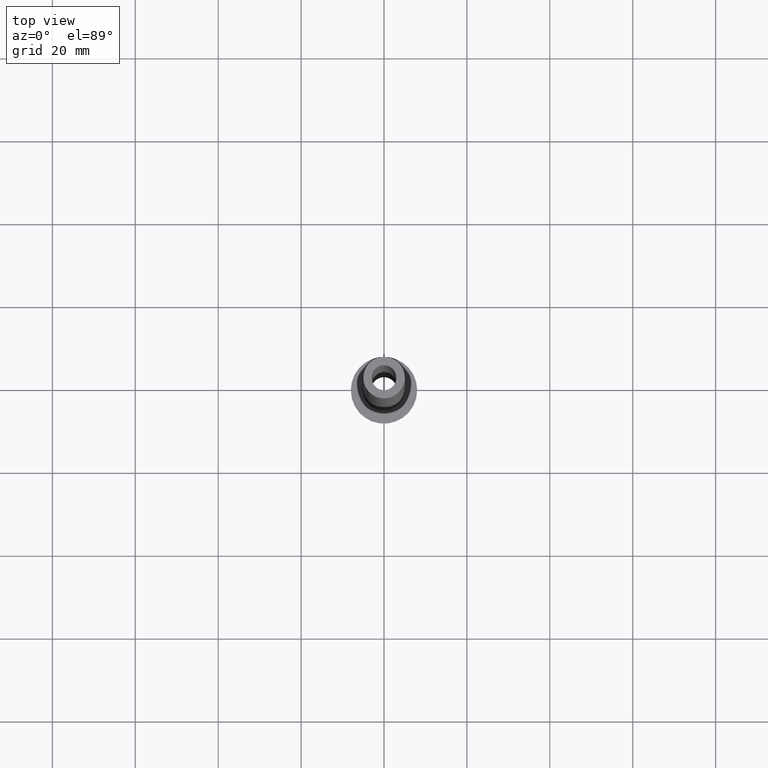
[diagram: clean part render]
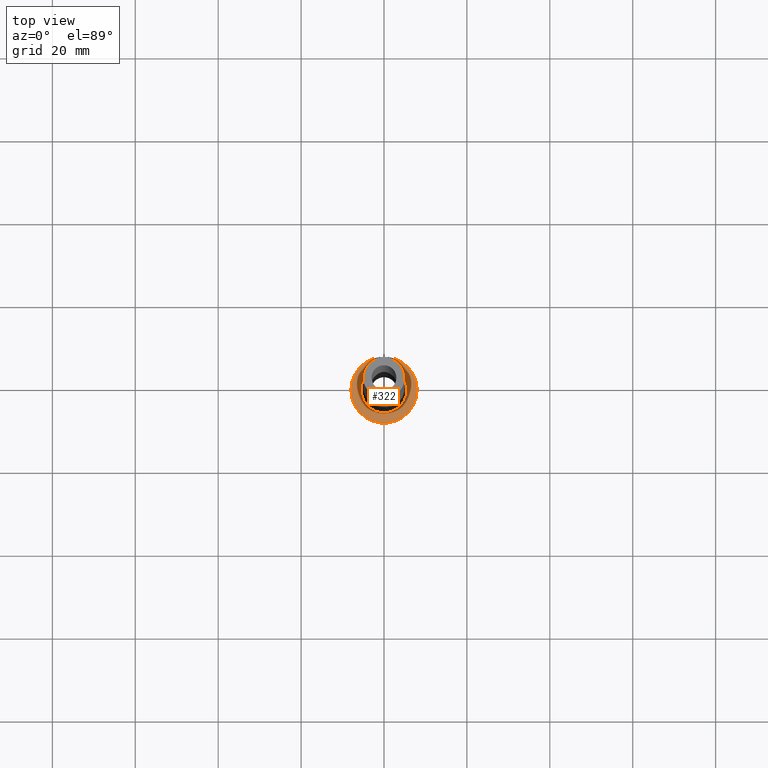
[diagram: same view with one face highlighted and labeled with its STEP entity id]
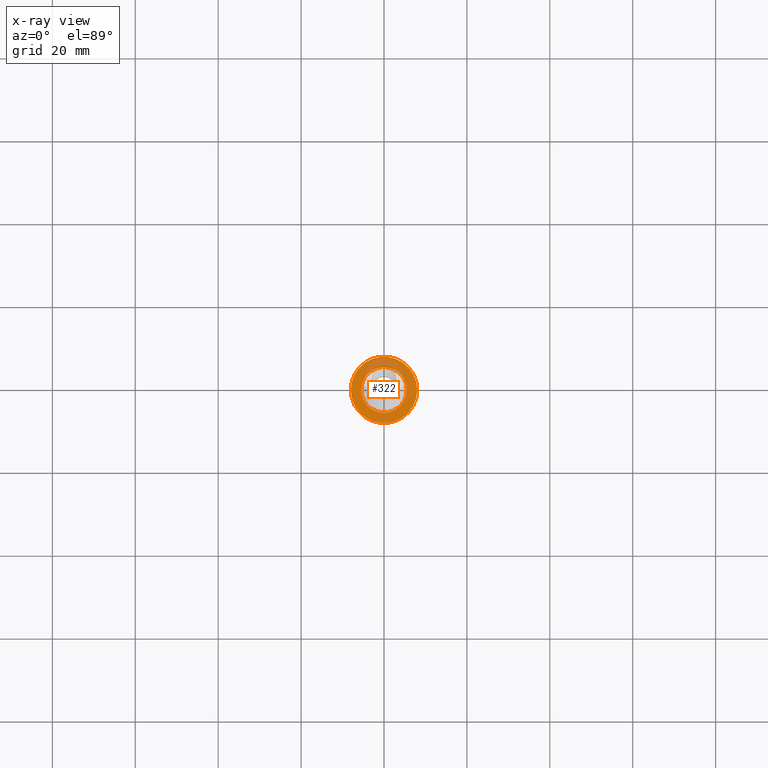
[diagram: x-ray of the same camera — body ghosted, the highlighted face saturated]
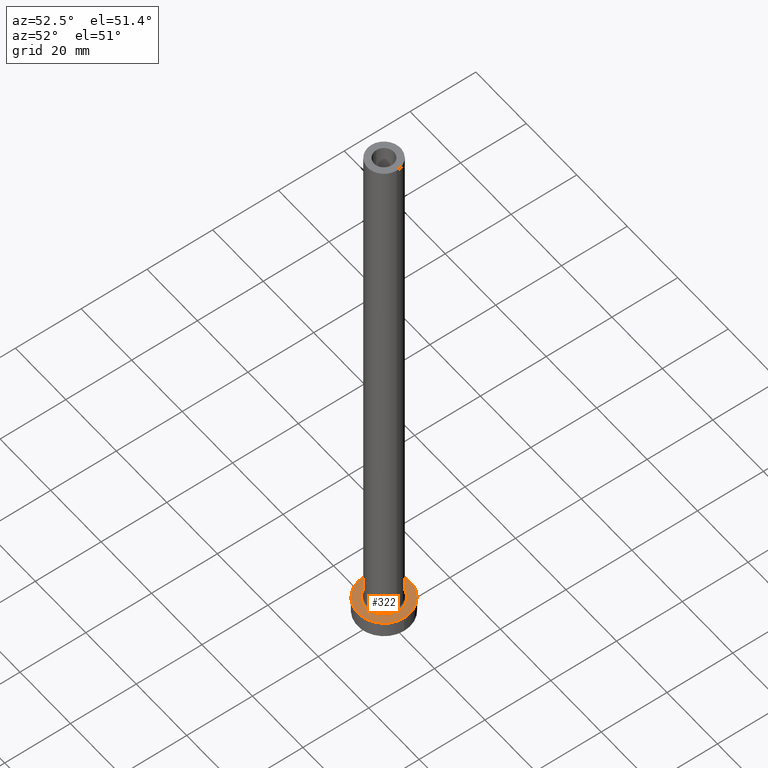
[diagram: same view with one face highlighted and labeled with its STEP entity id]
A machine part, top view. The second image highlights one B-rep face of the part: STEP entity #322.
The next image is the same camera in x-ray: the body ghosted, the highlighted face saturated — about 22% of this face is hidden behind the body in this view.
A second angle (auxiliary view) of the same face is appended — the face is thin or edge-on in the first view.
In plain terms, the highlighted planar face has unit normal (0, 0, 1).
Its self-contained STEP definition (entity closure, byte-faithful):
#3 = DIRECTION ( 'NONE',  ( 1.000000000000000000, 0.000000000000000000, 0.000000000000000000 ) ) ;
#15 = CARTESIAN_POINT ( 'NONE',  ( 0.000000000000000000, 0.000000000000000000, 5.000000000000000000 ) ) ;
#33 = AXIS2_PLACEMENT_3D ( 'NONE', #95, #253, #248 ) ;
#51 = DIRECTION ( 'NONE',  ( 0.000000000000000000, 0.000000000000000000, 1.000000000000000000 ) ) ;
#72 = CARTESIAN_POINT ( 'NONE',  ( -5.500000000000000000, 6.735557395310442023E-16, 5.000000000000002665 ) ) ;
#95 = CARTESIAN_POINT ( 'NONE',  ( 0.000000000000000000, 0.000000000000000000, 5.000000000000000000 ) ) ;
#100 = CARTESIAN_POINT ( 'NONE',  ( 8.000000000000000000, 9.797174393178825657E-16, 5.000000000000000000 ) ) ;
#108 = EDGE_LOOP ( 'NONE', ( #121, #145 ) ) ;
#119 = CIRCLE ( 'NONE', #244, 8.000000000000000000 ) ;
#120 = CIRCLE ( 'NONE', #350, 8.000000000000000000 ) ;
#121 = ORIENTED_EDGE ( 'NONE', *, *, #419, .T. ) ;
#126 = EDGE_CURVE ( 'NONE', #308, #230, #119, .T. ) ;
#145 = ORIENTED_EDGE ( 'NONE', *, *, #126, .T. ) ;
#149 = AXIS2_PLACEMENT_3D ( 'NONE', #186, #328, #3 ) ;
#159 = DIRECTION ( 'NONE',  ( 1.000000000000000000, 0.000000000000000000, 0.000000000000000000 ) ) ;
#164 = ORIENTED_EDGE ( 'NONE', *, *, #188, .T. ) ;
#165 = VERTEX_POINT ( 'NONE', #72 ) ;
#171 = AXIS2_PLACEMENT_3D ( 'NONE', #15, #51, #353 ) ;
#186 = CARTESIAN_POINT ( 'NONE',  ( 0.000000000000000000, 0.000000000000000000, 5.000000000000000000 ) ) ;
#188 = EDGE_CURVE ( 'NONE', #165, #293, #354, .T. ) ;
#199 = PLANE ( 'NONE',  #171 ) ;
#221 = CARTESIAN_POINT ( 'NONE',  ( -8.000000000000000000, 0.000000000000000000, 5.000000000000000000 ) ) ;
#230 = VERTEX_POINT ( 'NONE', #221 ) ;
#244 = AXIS2_PLACEMENT_3D ( 'NONE', #414, #422, #283 ) ;
#248 = DIRECTION ( 'NONE',  ( 1.000000000000000000, 0.000000000000000000, 0.000000000000000000 ) ) ;
#249 = CIRCLE ( 'NONE', #33, 5.500000000000000000 ) ;
#253 = DIRECTION ( 'NONE',  ( -0.000000000000000000, -0.000000000000000000, -1.000000000000000000 ) ) ;
#261 = CARTESIAN_POINT ( 'NONE',  ( 5.500000000000000000, 0.000000000000000000, 5.000000000000002665 ) ) ;
#274 = DIRECTION ( 'NONE',  ( 0.000000000000000000, 0.000000000000000000, 1.000000000000000000 ) ) ;
#283 = DIRECTION ( 'NONE',  ( 1.000000000000000000, 0.000000000000000000, 0.000000000000000000 ) ) ;
#293 = VERTEX_POINT ( 'NONE', #261 ) ;
#308 = VERTEX_POINT ( 'NONE', #100 ) ;
#322 = ADVANCED_FACE ( 'NONE', ( #411, #345 ), #199, .T. ) ;
#328 = DIRECTION ( 'NONE',  ( -0.000000000000000000, -0.000000000000000000, -1.000000000000000000 ) ) ;
#345 = FACE_OUTER_BOUND ( 'NONE', #108, .T. ) ;
#350 = AXIS2_PLACEMENT_3D ( 'NONE', #438, #274, #159 ) ;
#353 = DIRECTION ( 'NONE',  ( 1.000000000000000000, 0.000000000000000000, -0.000000000000000000 ) ) ;
#354 = CIRCLE ( 'NONE', #149, 5.500000000000000000 ) ;
#408 = EDGE_LOOP ( 'NONE', ( #444, #164 ) ) ;
#411 = FACE_BOUND ( 'NONE', #408, .T. ) ;
#414 = CARTESIAN_POINT ( 'NONE',  ( 0.000000000000000000, 0.000000000000000000, 5.000000000000000000 ) ) ;
#419 = EDGE_CURVE ( 'NONE', #230, #308, #120, .T. ) ;
#422 = DIRECTION ( 'NONE',  ( 0.000000000000000000, 0.000000000000000000, 1.000000000000000000 ) ) ;
#434 = EDGE_CURVE ( 'NONE', #293, #165, #249, .T. ) ;
#438 = CARTESIAN_POINT ( 'NONE',  ( 0.000000000000000000, 0.000000000000000000, 5.000000000000000000 ) ) ;
#444 = ORIENTED_EDGE ( 'NONE', *, *, #434, .T. ) ;